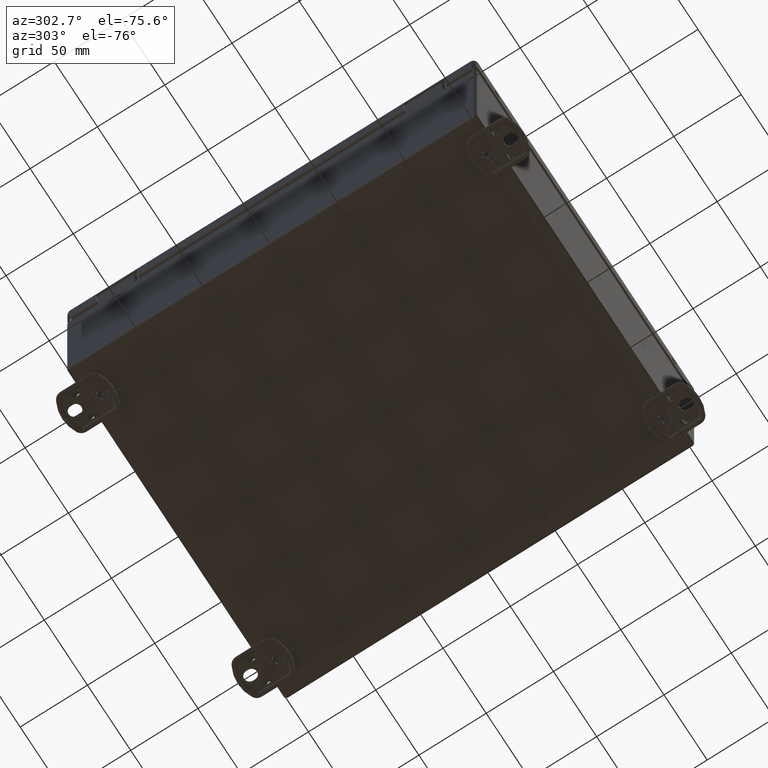
[diagram: clean part render]
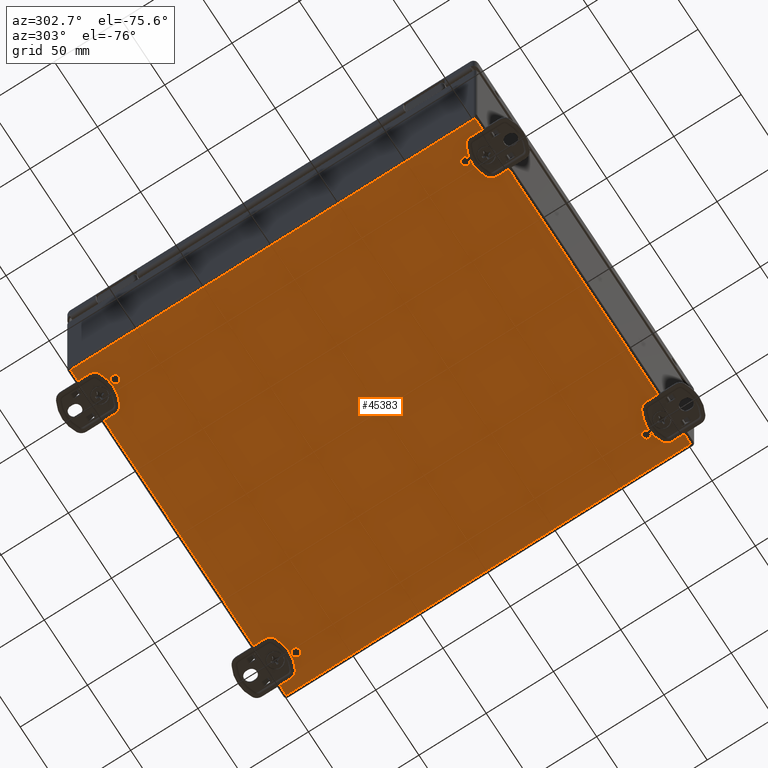
[diagram: same view with one face highlighted and labeled with its STEP entity id]
A machine part, auxiliary view. The second image highlights one B-rep face of the part: STEP entity #45383.
In plain terms, the highlighted planar face has unit normal (0, 0, 1).
Its self-contained STEP definition (entity closure, byte-faithful):
#2033=FACE_BOUND('',#7077,.T.);
#2034=FACE_BOUND('',#7078,.T.);
#2035=FACE_BOUND('',#7079,.T.);
#2036=FACE_BOUND('',#7080,.T.);
#2037=FACE_BOUND('',#7081,.T.);
#2038=FACE_BOUND('',#7082,.T.);
#2039=FACE_BOUND('',#7083,.T.);
#2040=FACE_BOUND('',#7084,.T.);
#3067=PLANE('',#48934);
#4283=FACE_OUTER_BOUND('',#7076,.T.);
#7076=EDGE_LOOP('',(#31263,#31264,#31265,#31266));
#7077=EDGE_LOOP('',(#31267));
#7078=EDGE_LOOP('',(#31268));
#7079=EDGE_LOOP('',(#31269));
#7080=EDGE_LOOP('',(#31270));
#7081=EDGE_LOOP('',(#31271,#31272,#31273,#31274,#31275,#31276));
#7082=EDGE_LOOP('',(#31277,#31278,#31279,#31280,#31281,#31282));
#7083=EDGE_LOOP('',(#31283,#31284,#31285,#31286,#31287,#31288));
#7084=EDGE_LOOP('',(#31289,#31290,#31291,#31292,#31293,#31294));
#9833=LINE('',#64713,#13691);
#9837=LINE('',#64721,#13695);
#9840=LINE('',#64727,#13698);
#9843=LINE('',#64733,#13701);
#9846=LINE('',#64739,#13704);
#9849=LINE('',#64744,#13707);
#9851=LINE('',#64749,#13709);
#9855=LINE('',#64757,#13713);
#9858=LINE('',#64763,#13716);
#9861=LINE('',#64769,#13719);
#9864=LINE('',#64775,#13722);
#9867=LINE('',#64780,#13725);
#9869=LINE('',#64785,#13727);
#9873=LINE('',#64793,#13731);
#9876=LINE('',#64799,#13734);
#9879=LINE('',#64805,#13737);
#9882=LINE('',#64811,#13740);
#9885=LINE('',#64816,#13743);
#9887=LINE('',#64821,#13745);
#9891=LINE('',#64829,#13749);
#9894=LINE('',#64835,#13752);
#9897=LINE('',#64841,#13755);
#9900=LINE('',#64847,#13758);
#9903=LINE('',#64852,#13761);
#10087=LINE('',#66027,#13945);
#10088=LINE('',#66031,#13946);
#10089=LINE('',#66033,#13947);
#10090=LINE('',#66034,#13948);
#13691=VECTOR('',#52741,0.393700787401575);
#13695=VECTOR('',#52747,0.393700787401575);
#13698=VECTOR('',#52752,0.393700787401575);
#13701=VECTOR('',#52757,0.393700787401575);
#13704=VECTOR('',#52762,0.393700787401575);
#13707=VECTOR('',#52767,0.393700787401575);
#13709=VECTOR('',#52771,0.393700787401575);
#13713=VECTOR('',#52777,0.393700787401575);
#13716=VECTOR('',#52782,0.393700787401575);
#13719=VECTOR('',#52787,0.393700787401575);
#13722=VECTOR('',#52792,0.393700787401575);
#13725=VECTOR('',#52797,0.393700787401575);
#13727=VECTOR('',#52801,0.393700787401575);
#13731=VECTOR('',#52807,0.393700787401575);
#13734=VECTOR('',#52812,0.393700787401575);
#13737=VECTOR('',#52817,0.393700787401575);
#13740=VECTOR('',#52822,0.393700787401575);
#13743=VECTOR('',#52827,0.393700787401575);
#13745=VECTOR('',#52831,0.393700787401575);
#13749=VECTOR('',#52837,0.393700787401575);
#13752=VECTOR('',#52842,0.393700787401575);
#13755=VECTOR('',#52847,0.393700787401575);
#13758=VECTOR('',#52852,0.393700787401575);
#13761=VECTOR('',#52857,0.393700787401575);
#13945=VECTOR('',#53539,0.393700787401575);
#13946=VECTOR('',#53544,0.393700787401575);
#13947=VECTOR('',#53545,0.393700787401575);
#13948=VECTOR('',#53546,0.393700787401575);
#17546=CIRCLE('',#48650,0.118);
#17548=CIRCLE('',#48653,0.118);
#17550=CIRCLE('',#48656,0.118);
#17552=CIRCLE('',#48659,0.118);
#19200=VERTEX_POINT('',#64689);
#19202=VERTEX_POINT('',#64695);
#19204=VERTEX_POINT('',#64701);
#19206=VERTEX_POINT('',#64707);
#19207=VERTEX_POINT('',#64711);
#19208=VERTEX_POINT('',#64712);
#19211=VERTEX_POINT('',#64720);
#19213=VERTEX_POINT('',#64726);
#19215=VERTEX_POINT('',#64732);
#19217=VERTEX_POINT('',#64738);
#19219=VERTEX_POINT('',#64747);
#19220=VERTEX_POINT('',#64748);
#19223=VERTEX_POINT('',#64756);
#19225=VERTEX_POINT('',#64762);
#19227=VERTEX_POINT('',#64768);
#19229=VERTEX_POINT('',#64774);
#19231=VERTEX_POINT('',#64783);
#19232=VERTEX_POINT('',#64784);
#19235=VERTEX_POINT('',#64792);
#19237=VERTEX_POINT('',#64798);
#19239=VERTEX_POINT('',#64804);
#19241=VERTEX_POINT('',#64810);
#19243=VERTEX_POINT('',#64819);
#19244=VERTEX_POINT('',#64820);
#19247=VERTEX_POINT('',#64828);
#19249=VERTEX_POINT('',#64834);
#19251=VERTEX_POINT('',#64840);
#19253=VERTEX_POINT('',#64846);
#19441=VERTEX_POINT('',#66014);
#19444=VERTEX_POINT('',#66026);
#19445=VERTEX_POINT('',#66030);
#19446=VERTEX_POINT('',#66032);
#23525=EDGE_CURVE('',#19200,#19200,#17546,.T.);
#23528=EDGE_CURVE('',#19202,#19202,#17548,.T.);
#23531=EDGE_CURVE('',#19204,#19204,#17550,.T.);
#23534=EDGE_CURVE('',#19206,#19206,#17552,.T.);
#23535=EDGE_CURVE('',#19207,#19208,#9833,.T.);
#23539=EDGE_CURVE('',#19211,#19207,#9837,.T.);
#23542=EDGE_CURVE('',#19213,#19211,#9840,.T.);
#23545=EDGE_CURVE('',#19215,#19213,#9843,.T.);
#23548=EDGE_CURVE('',#19208,#19217,#9846,.T.);
#23551=EDGE_CURVE('',#19217,#19215,#9849,.T.);
#23553=EDGE_CURVE('',#19219,#19220,#9851,.T.);
#23557=EDGE_CURVE('',#19223,#19219,#9855,.T.);
#23560=EDGE_CURVE('',#19225,#19223,#9858,.T.);
#23563=EDGE_CURVE('',#19227,#19225,#9861,.T.);
#23566=EDGE_CURVE('',#19220,#19229,#9864,.T.);
#23569=EDGE_CURVE('',#19229,#19227,#9867,.T.);
#23571=EDGE_CURVE('',#19231,#19232,#9869,.T.);
#23575=EDGE_CURVE('',#19235,#19231,#9873,.T.);
#23578=EDGE_CURVE('',#19237,#19235,#9876,.T.);
#23581=EDGE_CURVE('',#19239,#19237,#9879,.T.);
#23584=EDGE_CURVE('',#19232,#19241,#9882,.T.);
#23587=EDGE_CURVE('',#19241,#19239,#9885,.T.);
#23589=EDGE_CURVE('',#19243,#19244,#9887,.T.);
#23593=EDGE_CURVE('',#19247,#19243,#9891,.T.);
#23596=EDGE_CURVE('',#19249,#19247,#9894,.T.);
#23599=EDGE_CURVE('',#19251,#19249,#9897,.T.);
#23602=EDGE_CURVE('',#19244,#19253,#9900,.T.);
#23605=EDGE_CURVE('',#19253,#19251,#9903,.T.);
#23938=EDGE_CURVE('',#19441,#19444,#10087,.T.);
#23940=EDGE_CURVE('',#19445,#19441,#10088,.T.);
#23941=EDGE_CURVE('',#19446,#19445,#10089,.T.);
#23942=EDGE_CURVE('',#19444,#19446,#10090,.T.);
#31263=ORIENTED_EDGE('',*,*,#23940,.F.);
#31264=ORIENTED_EDGE('',*,*,#23941,.F.);
#31265=ORIENTED_EDGE('',*,*,#23942,.F.);
#31266=ORIENTED_EDGE('',*,*,#23938,.F.);
#31267=ORIENTED_EDGE('',*,*,#23525,.T.);
#31268=ORIENTED_EDGE('',*,*,#23528,.T.);
#31269=ORIENTED_EDGE('',*,*,#23531,.T.);
#31270=ORIENTED_EDGE('',*,*,#23534,.T.);
#31271=ORIENTED_EDGE('',*,*,#23542,.T.);
#31272=ORIENTED_EDGE('',*,*,#23539,.T.);
#31273=ORIENTED_EDGE('',*,*,#23535,.T.);
#31274=ORIENTED_EDGE('',*,*,#23548,.T.);
#31275=ORIENTED_EDGE('',*,*,#23551,.T.);
#31276=ORIENTED_EDGE('',*,*,#23545,.T.);
#31277=ORIENTED_EDGE('',*,*,#23560,.T.);
#31278=ORIENTED_EDGE('',*,*,#23557,.T.);
#31279=ORIENTED_EDGE('',*,*,#23553,.T.);
#31280=ORIENTED_EDGE('',*,*,#23566,.T.);
#31281=ORIENTED_EDGE('',*,*,#23569,.T.);
#31282=ORIENTED_EDGE('',*,*,#23563,.T.);
#31283=ORIENTED_EDGE('',*,*,#23578,.T.);
#31284=ORIENTED_EDGE('',*,*,#23575,.T.);
#31285=ORIENTED_EDGE('',*,*,#23571,.T.);
#31286=ORIENTED_EDGE('',*,*,#23584,.T.);
#31287=ORIENTED_EDGE('',*,*,#23587,.T.);
#31288=ORIENTED_EDGE('',*,*,#23581,.T.);
#31289=ORIENTED_EDGE('',*,*,#23596,.T.);
#31290=ORIENTED_EDGE('',*,*,#23593,.T.);
#31291=ORIENTED_EDGE('',*,*,#23589,.T.);
#31292=ORIENTED_EDGE('',*,*,#23602,.T.);
#31293=ORIENTED_EDGE('',*,*,#23605,.T.);
#31294=ORIENTED_EDGE('',*,*,#23599,.T.);
#45383=ADVANCED_FACE('',(#4283,#2033,#2034,#2035,#2036,#2037,#2038,#2039,
#2040),#3067,.F.);
#48650=AXIS2_PLACEMENT_3D('',#64691,#52716,#52717);
#48653=AXIS2_PLACEMENT_3D('',#64697,#52723,#52724);
#48656=AXIS2_PLACEMENT_3D('',#64703,#52730,#52731);
#48659=AXIS2_PLACEMENT_3D('',#64709,#52737,#52738);
#48934=AXIS2_PLACEMENT_3D('',#66029,#53542,#53543);
#52716=DIRECTION('center_axis',(0.,0.,1.));
#52717=DIRECTION('ref_axis',(-1.03830763414205E-16,-1.,0.));
#52723=DIRECTION('center_axis',(0.,0.,1.));
#52724=DIRECTION('ref_axis',(-1.03830763414205E-16,-1.,0.));
#52730=DIRECTION('center_axis',(0.,0.,1.));
#52731=DIRECTION('ref_axis',(-1.03830763414205E-16,-1.,0.));
#52737=DIRECTION('center_axis',(0.,0.,1.));
#52738=DIRECTION('ref_axis',(-1.03830763414205E-16,-1.,0.));
#52741=DIRECTION('',(-1.,-2.36873355770075E-16,0.));
#52747=DIRECTION('',(-0.5,0.866025403784438,0.));
#52752=DIRECTION('',(0.499999999999999,0.866025403784439,0.));
#52757=DIRECTION('',(1.,5.47028627767424E-16,0.));
#52762=DIRECTION('',(-0.499999999999999,-0.866025403784439,0.));
#52767=DIRECTION('',(0.500000000000001,-0.866025403784438,0.));
#52771=DIRECTION('',(-1.,-2.36873355770075E-16,0.));
#52777=DIRECTION('',(-0.5,0.866025403784438,0.));
#52782=DIRECTION('',(0.499999999999999,0.866025403784439,0.));
#52787=DIRECTION('',(1.,5.47028627767424E-16,0.));
#52792=DIRECTION('',(-0.499999999999999,-0.866025403784439,0.));
#52797=DIRECTION('',(0.500000000000001,-0.866025403784438,0.));
#52801=DIRECTION('',(1.,-2.07215854079987E-16,0.));
#52807=DIRECTION('',(0.5,-0.866025403784439,0.));
#52812=DIRECTION('',(-0.5,-0.866025403784439,0.));
#52817=DIRECTION('',(-1.,-1.02939417917362E-16,0.));
#52822=DIRECTION('',(0.5,0.866025403784439,0.));
#52827=DIRECTION('',(-0.5,0.866025403784438,0.));
#52831=DIRECTION('',(1.,-2.07215854079987E-16,0.));
#52837=DIRECTION('',(0.5,-0.866025403784439,0.));
#52842=DIRECTION('',(-0.5,-0.866025403784439,0.));
#52847=DIRECTION('',(-1.,-1.02939417917362E-16,0.));
#52852=DIRECTION('',(0.5,0.866025403784439,0.));
#52857=DIRECTION('',(-0.5,0.866025403784438,0.));
#53539=DIRECTION('',(1.,-1.16798743743643E-32,0.));
#53542=DIRECTION('center_axis',(0.,0.,1.));
#53543=DIRECTION('ref_axis',(1.,0.,0.));
#53544=DIRECTION('',(-4.62223186652937E-33,-1.,0.));
#53545=DIRECTION('',(-1.,1.16798743743643E-32,0.));
#53546=DIRECTION('',(-1.66859848653694E-32,1.,0.));
#64689=CARTESIAN_POINT('',(4.125,-5.007,0.));
#64691=CARTESIAN_POINT('Origin',(4.125,-5.125,0.));
#64695=CARTESIAN_POINT('',(-4.125,-5.007,0.));
#64697=CARTESIAN_POINT('Origin',(-4.125,-5.125,0.));
#64701=CARTESIAN_POINT('',(-4.125,5.243,0.));
#64703=CARTESIAN_POINT('Origin',(-4.125,5.125,0.));
#64707=CARTESIAN_POINT('',(4.125,5.243,0.));
#64709=CARTESIAN_POINT('Origin',(4.125,5.125,0.));
#64711=CARTESIAN_POINT('',(4.10569601384771,-5.47292913385827,0.));
#64712=CARTESIAN_POINT('',(3.89430398615229,-5.47292913385827,0.));
#64713=CARTESIAN_POINT('',(2.05284800692386,-5.47292913385827,0.));
#64720=CARTESIAN_POINT('',(4.21139202769542,-5.656,0.));
#64721=CARTESIAN_POINT('',(2.46040810328229,-2.62320687968013,0.));
#64726=CARTESIAN_POINT('',(4.10569601384771,-5.83907086614173,0.));
#64727=CARTESIAN_POINT('',(4.85667993826083,-4.53832855339074,0.));
#64732=CARTESIAN_POINT('',(3.89430398615229,-5.83907086614173,0.));
#64733=CARTESIAN_POINT('',(1.94715199307615,-5.83907086614173,0.));
#64738=CARTESIAN_POINT('',(3.78860797230459,-5.656,0.));
#64739=CARTESIAN_POINT('',(4.59243990364156,-4.26372225417814,-5.46369598732853E-18));
#64744=CARTESIAN_POINT('',(2.09047205481532,-2.714742312751,0.));
#64747=CARTESIAN_POINT('',(-3.89430398615229,-5.47292913385827,0.));
#64748=CARTESIAN_POINT('',(-4.10569601384771,-5.47292913385827,0.));
#64749=CARTESIAN_POINT('',(-1.94715199307614,-5.47292913385827,0.));
#64756=CARTESIAN_POINT('',(-3.78860797230458,-5.656,0.));
#64757=CARTESIAN_POINT('',(-4.53959189671771,-4.35525768724901,0.));
#64762=CARTESIAN_POINT('',(-3.89430398615229,-5.83907086614173,0.));
#64763=CARTESIAN_POINT('',(-2.14332006173917,-2.80627774582186,0.));
#64768=CARTESIAN_POINT('',(-4.10569601384771,-5.83907086614173,0.));
#64769=CARTESIAN_POINT('',(-2.05284800692385,-5.83907086614173,0.));
#64774=CARTESIAN_POINT('',(-4.21139202769541,-5.656,0.));
#64775=CARTESIAN_POINT('',(-2.40756009635844,-2.53167144660926,-5.46369598732853E-18));
#64780=CARTESIAN_POINT('',(-4.90952794518468,-4.44679312031987,0.));
#64783=CARTESIAN_POINT('',(3.89430398615229,5.47292913385827,0.));
#64784=CARTESIAN_POINT('',(4.10569601384771,5.47292913385827,0.));
#64785=CARTESIAN_POINT('',(1.94715199307615,5.47292913385827,0.));
#64792=CARTESIAN_POINT('',(3.78860797230459,5.656,0.));
#64793=CARTESIAN_POINT('',(4.53959189671771,4.355257687249,5.46369598732853E-18));
#64798=CARTESIAN_POINT('',(3.89430398615229,5.83907086614173,0.));
#64799=CARTESIAN_POINT('',(2.14332006173917,2.80627774582186,0.));
#64804=CARTESIAN_POINT('',(4.10569601384771,5.83907086614173,0.));
#64805=CARTESIAN_POINT('',(2.05284800692385,5.83907086614173,0.));
#64810=CARTESIAN_POINT('',(4.21139202769541,5.656,0.));
#64811=CARTESIAN_POINT('',(2.40756009635844,2.53167144660926,0.));
#64816=CARTESIAN_POINT('',(4.90952794518468,4.44679312031987,0.));
#64819=CARTESIAN_POINT('',(-4.10569601384771,5.47292913385827,0.));
#64820=CARTESIAN_POINT('',(-3.89430398615229,5.47292913385827,0.));
#64821=CARTESIAN_POINT('',(-2.05284800692385,5.47292913385827,0.));
#64828=CARTESIAN_POINT('',(-4.21139202769541,5.656,0.));
#64829=CARTESIAN_POINT('',(-2.46040810328229,2.62320687968013,5.46369598732853E-18));
#64834=CARTESIAN_POINT('',(-4.10569601384771,5.83907086614173,0.));
#64835=CARTESIAN_POINT('',(-4.85667993826083,4.53832855339074,0.));
#64840=CARTESIAN_POINT('',(-3.89430398615229,5.83907086614173,0.));
#64841=CARTESIAN_POINT('',(-1.94715199307615,5.83907086614173,0.));
#64846=CARTESIAN_POINT('',(-3.78860797230458,5.656,0.));
#64847=CARTESIAN_POINT('',(-4.59243990364156,4.26372225417814,0.));
#64852=CARTESIAN_POINT('',(-2.09047205481531,2.71474231275099,0.));
#66014=CARTESIAN_POINT('',(-4.916,-5.916,0.));
#66026=CARTESIAN_POINT('',(4.916,-5.916,0.));
#66027=CARTESIAN_POINT('',(2.88988878668616E-17,-5.916,0.));
#66029=CARTESIAN_POINT('Origin',(5.77977757337233E-17,0.,0.));
#66030=CARTESIAN_POINT('',(-4.916,5.916,0.));
#66031=CARTESIAN_POINT('',(-4.916,2.16759596456693,0.));
#66032=CARTESIAN_POINT('',(4.916,5.916,0.));
#66033=CARTESIAN_POINT('',(2.88988878668617E-17,5.916,0.));
#66034=CARTESIAN_POINT('',(4.916,4.03133394347325E-32,0.));